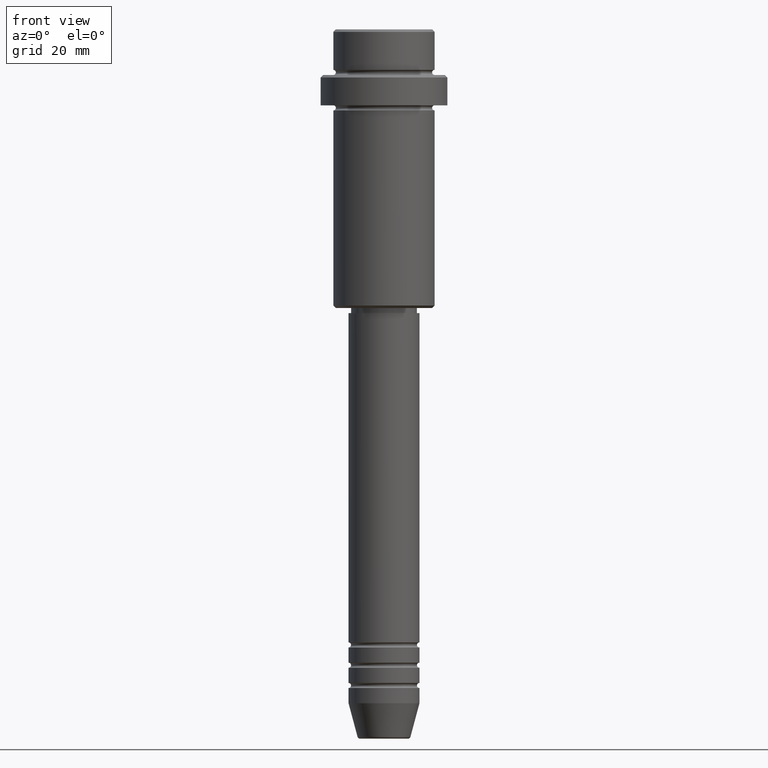
[diagram: clean part render]
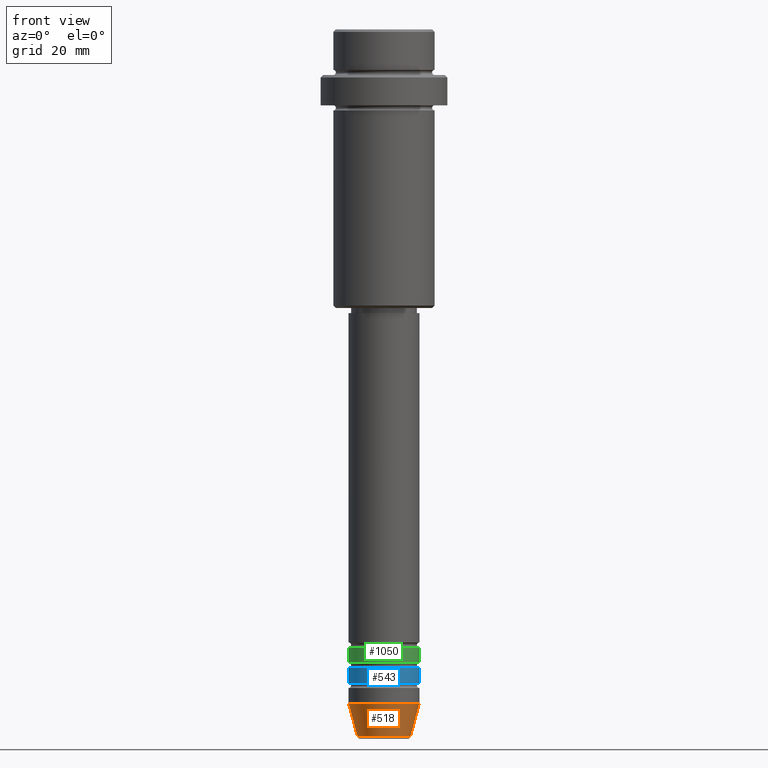
[diagram: same view with three faces highlighted in distinct colors, each labeled with its STEP entity id]
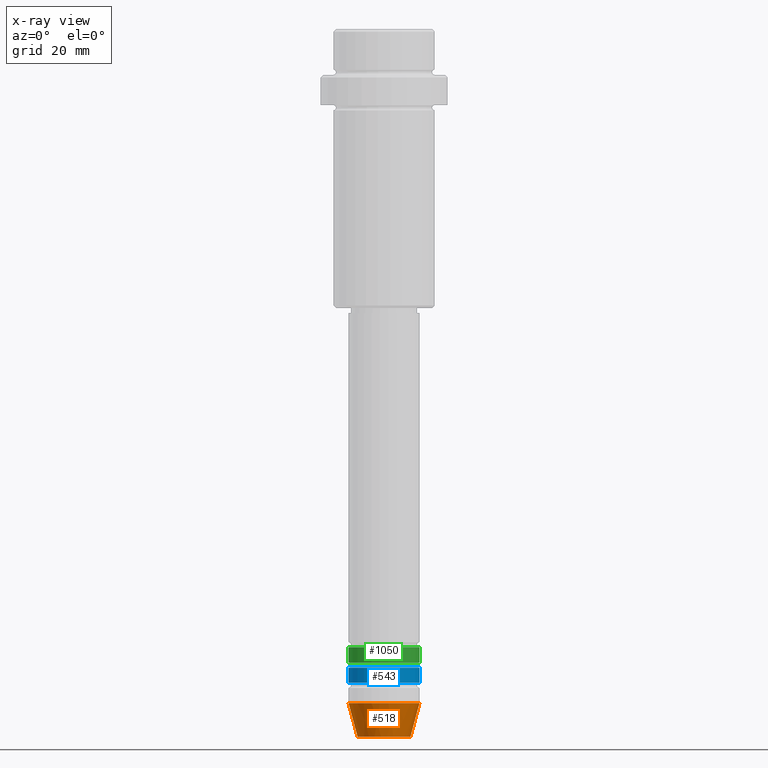
[diagram: x-ray of the same camera — body ghosted, the three highlighted faces saturated]
A machine part, front view with three faces highlighted in distinct colors.
The next image is the same camera in x-ray (body ghosted, the three faces saturated) — at least one of them is partly hidden behind the body in this view.
Their STEP definitions:

[orange] entity #518 — the highlighted conical surface has half-angle 15 deg.
#54 = VERTEX_POINT ( 'NONE', #184 ) ;
#72 = EDGE_CURVE ( 'NONE', #718, #1235, #170, .T. ) ;
#82 = CIRCLE ( 'NONE', #302, 7.000000000000000000 ) ;
#118 = LINE ( 'NONE', #229, #1380 ) ;
#128 = AXIS2_PLACEMENT_3D ( 'NONE', #165, #179, #1281 ) ;
#137 = DIRECTION ( 'NONE',  ( -0.000000000000000000, -0.000000000000000000, 1.000000000000000000 ) ) ;
#165 = CARTESIAN_POINT ( 'NONE',  ( 0.000000000000000000, 0.000000000000000000, -139.6294095225512706 ) ) ;
#170 = CIRCLE ( 'NONE', #128, 5.223655072137191269 ) ;
#179 = DIRECTION ( 'NONE',  ( -0.000000000000000000, -0.000000000000000000, 1.000000000000000000 ) ) ;
#184 = CARTESIAN_POINT ( 'NONE',  ( -7.000000000000000000, 8.572527594031473190E-16, -133.0000000000000000 ) ) ;
#219 = ORIENTED_EDGE ( 'NONE', *, *, #278, .T. ) ;
#229 = CARTESIAN_POINT ( 'NONE',  ( 7.000000000000000000, 0.000000000000000000, -133.0000000000000000 ) ) ;
#278 = EDGE_CURVE ( 'NONE', #1235, #468, #118, .T. ) ;
#302 = AXIS2_PLACEMENT_3D ( 'NONE', #1224, #890, #441 ) ;
#309 = EDGE_LOOP ( 'NONE', ( #784, #1091, #219, #674 ) ) ;
#314 = DIRECTION ( 'NONE',  ( -0.2588190451025214056, 3.169619151431772953E-17, 0.9659258262890680902 ) ) ;
#363 = AXIS2_PLACEMENT_3D ( 'NONE', #455, #137, #1333 ) ;
#390 = CARTESIAN_POINT ( 'NONE',  ( 5.223655072137191269, 0.000000000000000000, -139.6294095225512706 ) ) ;
#441 = DIRECTION ( 'NONE',  ( 1.000000000000000000, 0.000000000000000000, 0.000000000000000000 ) ) ;
#455 = CARTESIAN_POINT ( 'NONE',  ( 0.000000000000000000, 0.000000000000000000, -133.0000000000000000 ) ) ;
#468 = VERTEX_POINT ( 'NONE', #540 ) ;
#472 = DIRECTION ( 'NONE',  ( 0.2588190451025214056, 0.000000000000000000, 0.9659258262890680902 ) ) ;
#518 = ADVANCED_FACE ( 'NONE', ( #1117 ), #1331, .T. ) ;
#540 = CARTESIAN_POINT ( 'NONE',  ( 7.000000000000000000, 0.000000000000000000, -133.0000000000000000 ) ) ;
#623 = EDGE_CURVE ( 'NONE', #54, #468, #82, .T. ) ;
#632 = EDGE_CURVE ( 'NONE', #718, #54, #654, .T. ) ;
#654 = LINE ( 'NONE', #1201, #874 ) ;
#674 = ORIENTED_EDGE ( 'NONE', *, *, #623, .F. ) ;
#718 = VERTEX_POINT ( 'NONE', #1124 ) ;
#784 = ORIENTED_EDGE ( 'NONE', *, *, #632, .F. ) ;
#874 = VECTOR ( 'NONE', #314, 1000.000000000000000 ) ;
#890 = DIRECTION ( 'NONE',  ( -0.000000000000000000, -0.000000000000000000, 1.000000000000000000 ) ) ;
#1091 = ORIENTED_EDGE ( 'NONE', *, *, #72, .T. ) ;
#1117 = FACE_OUTER_BOUND ( 'NONE', #309, .T. ) ;
#1124 = CARTESIAN_POINT ( 'NONE',  ( -5.223655072137191269, 7.484830028987061160E-16, -139.6294095225512706 ) ) ;
#1201 = CARTESIAN_POINT ( 'NONE',  ( -7.000000000000000000, 8.572527594031473190E-16, -133.0000000000000000 ) ) ;
#1224 = CARTESIAN_POINT ( 'NONE',  ( 0.000000000000000000, 0.000000000000000000, -133.0000000000000000 ) ) ;
#1235 = VERTEX_POINT ( 'NONE', #390 ) ;
#1281 = DIRECTION ( 'NONE',  ( 1.000000000000000000, 0.000000000000000000, 0.000000000000000000 ) ) ;
#1331 = CONICAL_SURFACE ( 'NONE', #363, 7.000000000000000000, 0.2617993877991501295 ) ;
#1333 = DIRECTION ( 'NONE',  ( 1.000000000000000000, 0.000000000000000000, 0.000000000000000000 ) ) ;
#1380 = VECTOR ( 'NONE', #472, 1000.000000000000000 ) ;

[blue] entity #543 — the highlighted cylindrical surface (edge-blend (fillet) strip) has radius 7 mm, axis along (-0, -0, 1).
#21 = LINE ( 'NONE', #883, #1181 ) ;
#32 = LINE ( 'NONE', #228, #598 ) ;
#66 = CARTESIAN_POINT ( 'NONE',  ( -7.000000000000000000, 8.572527594031473190E-16, -125.9999999999998863 ) ) ;
#101 = CIRCLE ( 'NONE', #1152, 7.000000000000000000 ) ;
#127 = VERTEX_POINT ( 'NONE', #1391 ) ;
#146 = VERTEX_POINT ( 'NONE', #66 ) ;
#159 = DIRECTION ( 'NONE',  ( -0.000000000000000000, -0.000000000000000000, 1.000000000000000000 ) ) ;
#228 = CARTESIAN_POINT ( 'NONE',  ( 7.000000000000000000, 0.000000000000000000, 0.000000000000000000 ) ) ;
#294 = VERTEX_POINT ( 'NONE', #1002 ) ;
#324 = DIRECTION ( 'NONE',  ( 1.000000000000000000, 0.000000000000000000, 0.000000000000000000 ) ) ;
#345 = CARTESIAN_POINT ( 'NONE',  ( 0.000000000000000000, 0.000000000000000000, 0.000000000000000000 ) ) ;
#521 = ORIENTED_EDGE ( 'NONE', *, *, #1043, .F. ) ;
#534 = EDGE_CURVE ( 'NONE', #551, #294, #32, .T. ) ;
#543 = ADVANCED_FACE ( 'NONE', ( #1327 ), #788, .T. ) ;
#551 = VERTEX_POINT ( 'NONE', #1110 ) ;
#572 = DIRECTION ( 'NONE',  ( -0.000000000000000000, -0.000000000000000000, 1.000000000000000000 ) ) ;
#598 = VECTOR ( 'NONE', #572, 1000.000000000000000 ) ;
#657 = EDGE_LOOP ( 'NONE', ( #1294, #1324, #1336, #521 ) ) ;
#669 = DIRECTION ( 'NONE',  ( 1.000000000000000000, 0.000000000000000000, 0.000000000000000000 ) ) ;
#704 = EDGE_CURVE ( 'NONE', #127, #551, #101, .T. ) ;
#788 = CYLINDRICAL_SURFACE ( 'NONE', #1285, 7.000000000000000000 ) ;
#789 = AXIS2_PLACEMENT_3D ( 'NONE', #949, #159, #1390 ) ;
#822 = DIRECTION ( 'NONE',  ( -0.000000000000000000, -0.000000000000000000, 1.000000000000000000 ) ) ;
#831 = CIRCLE ( 'NONE', #789, 7.000000000000000000 ) ;
#883 = CARTESIAN_POINT ( 'NONE',  ( -7.000000000000000000, 8.572527594031473190E-16, 0.000000000000000000 ) ) ;
#949 = CARTESIAN_POINT ( 'NONE',  ( 0.000000000000000000, 0.000000000000000000, -125.9999999999998863 ) ) ;
#985 = CARTESIAN_POINT ( 'NONE',  ( 0.000000000000000000, 0.000000000000000000, -128.9999999999998863 ) ) ;
#1002 = CARTESIAN_POINT ( 'NONE',  ( 7.000000000000000000, 0.000000000000000000, -125.9999999999998863 ) ) ;
#1043 = EDGE_CURVE ( 'NONE', #146, #294, #831, .T. ) ;
#1110 = CARTESIAN_POINT ( 'NONE',  ( 7.000000000000000000, 0.000000000000000000, -128.9999999999998863 ) ) ;
#1152 = AXIS2_PLACEMENT_3D ( 'NONE', #985, #1312, #324 ) ;
#1169 = EDGE_CURVE ( 'NONE', #127, #146, #21, .T. ) ;
#1181 = VECTOR ( 'NONE', #822, 1000.000000000000000 ) ;
#1232 = DIRECTION ( 'NONE',  ( -0.000000000000000000, -0.000000000000000000, 1.000000000000000000 ) ) ;
#1285 = AXIS2_PLACEMENT_3D ( 'NONE', #345, #1232, #669 ) ;
#1294 = ORIENTED_EDGE ( 'NONE', *, *, #1169, .F. ) ;
#1312 = DIRECTION ( 'NONE',  ( -0.000000000000000000, -0.000000000000000000, 1.000000000000000000 ) ) ;
#1324 = ORIENTED_EDGE ( 'NONE', *, *, #704, .T. ) ;
#1327 = FACE_OUTER_BOUND ( 'NONE', #657, .T. ) ;
#1336 = ORIENTED_EDGE ( 'NONE', *, *, #534, .T. ) ;
#1390 = DIRECTION ( 'NONE',  ( 1.000000000000000000, 0.000000000000000000, 0.000000000000000000 ) ) ;
#1391 = CARTESIAN_POINT ( 'NONE',  ( -7.000000000000000000, 8.572527594031473190E-16, -128.9999999999998863 ) ) ;

[green] entity #1050 — the highlighted cylindrical surface (edge-blend (fillet) strip) has radius 7 mm, axis along (-0, -0, 1).
#8 = EDGE_CURVE ( 'NONE', #1396, #1298, #254, .T. ) ;
#41 = CARTESIAN_POINT ( 'NONE',  ( 7.000000000000000000, 0.000000000000000000, -124.9999999999999005 ) ) ;
#78 = CIRCLE ( 'NONE', #277, 7.000000000000000000 ) ;
#95 = DIRECTION ( 'NONE',  ( -0.000000000000000000, -0.000000000000000000, 1.000000000000000000 ) ) ;
#129 = AXIS2_PLACEMENT_3D ( 'NONE', #550, #1202, #407 ) ;
#217 = EDGE_CURVE ( 'NONE', #1028, #1396, #1395, .T. ) ;
#246 = VECTOR ( 'NONE', #1162, 1000.000000000000000 ) ;
#254 = CIRCLE ( 'NONE', #301, 7.000000000000000000 ) ;
#261 = FACE_OUTER_BOUND ( 'NONE', #1196, .T. ) ;
#277 = AXIS2_PLACEMENT_3D ( 'NONE', #365, #915, #699 ) ;
#301 = AXIS2_PLACEMENT_3D ( 'NONE', #602, #1171, #1266 ) ;
#357 = ORIENTED_EDGE ( 'NONE', *, *, #217, .F. ) ;
#365 = CARTESIAN_POINT ( 'NONE',  ( 0.000000000000000000, 0.000000000000000000, -124.9999999999999005 ) ) ;
#407 = DIRECTION ( 'NONE',  ( 1.000000000000000000, 0.000000000000000000, 0.000000000000000000 ) ) ;
#429 = EDGE_CURVE ( 'NONE', #1122, #1298, #714, .T. ) ;
#550 = CARTESIAN_POINT ( 'NONE',  ( 0.000000000000000000, 0.000000000000000000, 0.000000000000000000 ) ) ;
#602 = CARTESIAN_POINT ( 'NONE',  ( 0.000000000000000000, 0.000000000000000000, -121.9999999999999005 ) ) ;
#609 = CARTESIAN_POINT ( 'NONE',  ( 7.000000000000000000, 0.000000000000000000, 0.000000000000000000 ) ) ;
#680 = ORIENTED_EDGE ( 'NONE', *, *, #8, .F. ) ;
#699 = DIRECTION ( 'NONE',  ( 1.000000000000000000, 0.000000000000000000, 0.000000000000000000 ) ) ;
#714 = LINE ( 'NONE', #609, #246 ) ;
#747 = EDGE_CURVE ( 'NONE', #1028, #1122, #78, .T. ) ;
#845 = CARTESIAN_POINT ( 'NONE',  ( 7.000000000000000000, 0.000000000000000000, -121.9999999999999005 ) ) ;
#915 = DIRECTION ( 'NONE',  ( -0.000000000000000000, -0.000000000000000000, 1.000000000000000000 ) ) ;
#922 = CYLINDRICAL_SURFACE ( 'NONE', #129, 7.000000000000000000 ) ;
#1028 = VERTEX_POINT ( 'NONE', #1056 ) ;
#1050 = ADVANCED_FACE ( 'NONE', ( #261 ), #922, .T. ) ;
#1056 = CARTESIAN_POINT ( 'NONE',  ( -7.000000000000000000, 8.572527594031473190E-16, -124.9999999999999005 ) ) ;
#1058 = VECTOR ( 'NONE', #95, 1000.000000000000000 ) ;
#1122 = VERTEX_POINT ( 'NONE', #41 ) ;
#1137 = ORIENTED_EDGE ( 'NONE', *, *, #429, .T. ) ;
#1162 = DIRECTION ( 'NONE',  ( -0.000000000000000000, -0.000000000000000000, 1.000000000000000000 ) ) ;
#1171 = DIRECTION ( 'NONE',  ( -0.000000000000000000, -0.000000000000000000, 1.000000000000000000 ) ) ;
#1187 = CARTESIAN_POINT ( 'NONE',  ( -7.000000000000000000, 8.572527594031473190E-16, -121.9999999999999005 ) ) ;
#1196 = EDGE_LOOP ( 'NONE', ( #357, #1246, #1137, #680 ) ) ;
#1202 = DIRECTION ( 'NONE',  ( -0.000000000000000000, -0.000000000000000000, 1.000000000000000000 ) ) ;
#1246 = ORIENTED_EDGE ( 'NONE', *, *, #747, .T. ) ;
#1266 = DIRECTION ( 'NONE',  ( 1.000000000000000000, 0.000000000000000000, 0.000000000000000000 ) ) ;
#1298 = VERTEX_POINT ( 'NONE', #845 ) ;
#1395 = LINE ( 'NONE', #1415, #1058 ) ;
#1396 = VERTEX_POINT ( 'NONE', #1187 ) ;
#1415 = CARTESIAN_POINT ( 'NONE',  ( -7.000000000000000000, 8.572527594031473190E-16, 0.000000000000000000 ) ) ;